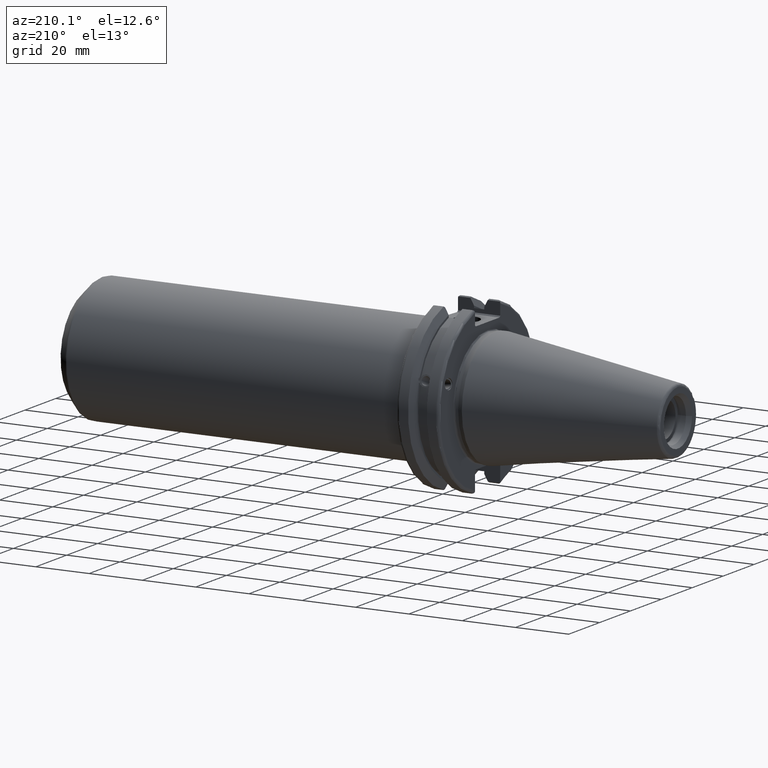
[diagram: clean part render]
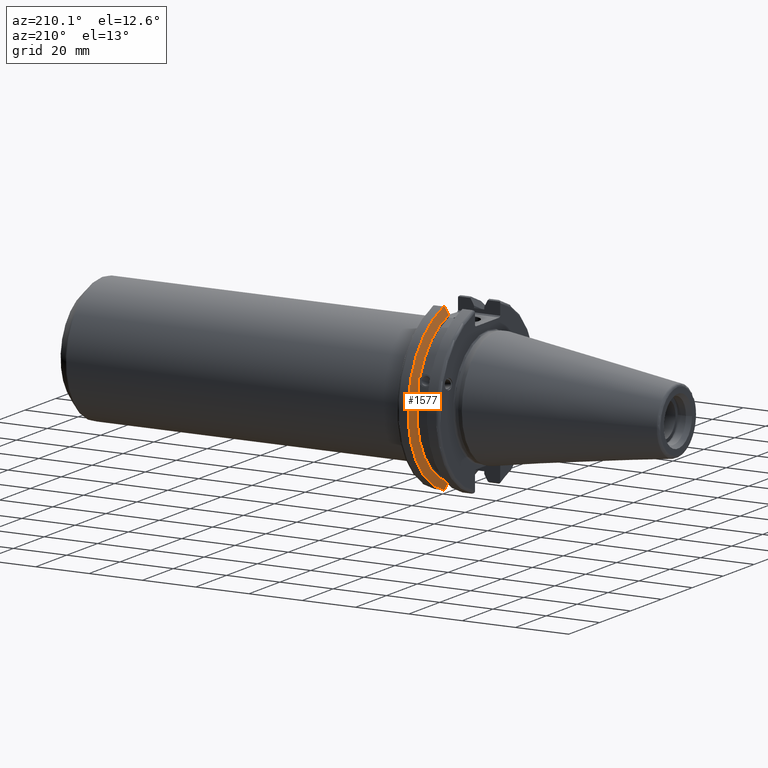
[diagram: same view with one face highlighted and labeled with its STEP entity id]
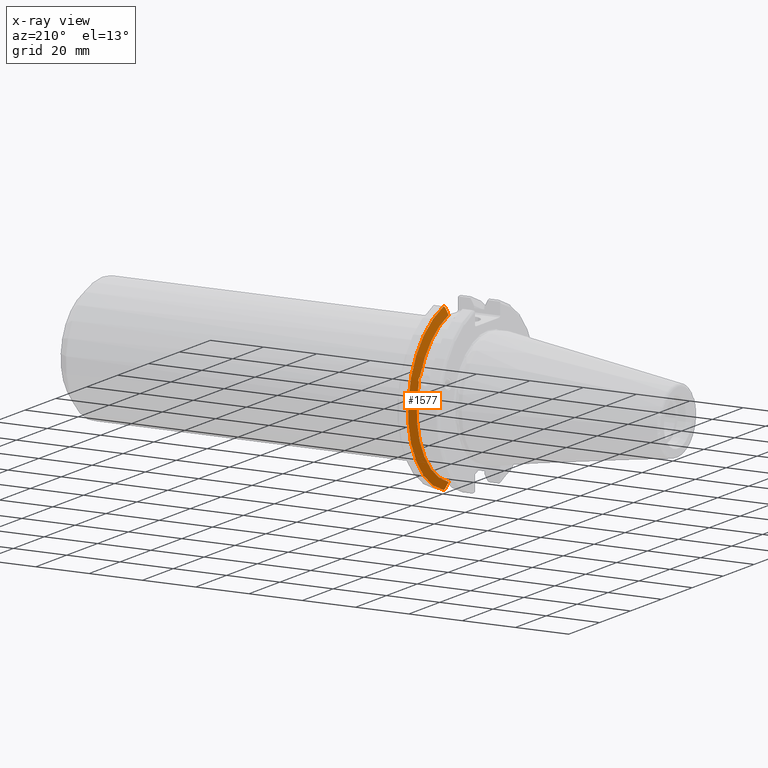
[diagram: x-ray of the same camera — body ghosted, the highlighted face saturated]
A machine part, auxiliary view. The second image highlights one B-rep face of the part: STEP entity #1577.
The next image is the same camera in x-ray: the body ghosted, the highlighted face saturated — about 0% of this face is hidden behind the body in this view.
In plain terms, the highlighted conical surface has half-angle 60 deg.
Its self-contained STEP definition (entity closure, byte-faithful):
#23=(
BOUNDED_CURVE()
B_SPLINE_CURVE(2,(#2879,#2880,#2881),.UNSPECIFIED.,.F.,.F.)
B_SPLINE_CURVE_WITH_KNOTS((3,3),(0.329353533631226,0.393258405001025),
 .UNSPECIFIED.)
CURVE()
GEOMETRIC_REPRESENTATION_ITEM()
RATIONAL_B_SPLINE_CURVE((1.00047644010577,1.00028444218285,1.))
REPRESENTATION_ITEM('')
);
#24=(
BOUNDED_CURVE()
B_SPLINE_CURVE(2,(#2892,#2893,#2894),.UNSPECIFIED.,.F.,.F.)
B_SPLINE_CURVE_WITH_KNOTS((3,3),(0.0550586467393769,0.331607789535852),
 .UNSPECIFIED.)
CURVE()
GEOMETRIC_REPRESENTATION_ITEM()
RATIONAL_B_SPLINE_CURVE((1.00031614444922,1.00095203903643,1.))
REPRESENTATION_ITEM('')
);
#29=(
BOUNDED_CURVE()
B_SPLINE_CURVE(2,(#3053,#3054,#3055),.UNSPECIFIED.,.F.,.F.)
B_SPLINE_CURVE_WITH_KNOTS((3,3),(0.,0.276549142795274),.UNSPECIFIED.)
CURVE()
GEOMETRIC_REPRESENTATION_ITEM()
RATIONAL_B_SPLINE_CURVE((1.,1.00095203903599,1.00031614444907))
REPRESENTATION_ITEM('')
);
#30=(
BOUNDED_CURVE()
B_SPLINE_CURVE(2,(#3070,#3071,#3072),.UNSPECIFIED.,.F.,.F.)
B_SPLINE_CURVE_WITH_KNOTS((3,3),(0.,0.0639048713675655),.UNSPECIFIED.)
CURVE()
GEOMETRIC_REPRESENTATION_ITEM()
RATIONAL_B_SPLINE_CURVE((1.,1.00028444218286,1.00047644010578))
REPRESENTATION_ITEM('')
);
#71=B_SPLINE_CURVE_WITH_KNOTS('',3,(#2691,#2692,#2693,#2694,#2695,#2696,
#2697,#2698),.UNSPECIFIED.,.F.,.F.,(4,2,2,4),(0.451995700189023,0.464547828547662,
0.504528771685167,0.544509714822672),.UNSPECIFIED.);
#75=B_SPLINE_CURVE_WITH_KNOTS('',3,(#2753,#2754,#2755,#2756,#2757,#2758,
#2759,#2760),.UNSPECIFIED.,.F.,.F.,(4,2,2,4),(0.544509714822672,0.584490657960177,
0.624471601097682,0.637023729456323),.UNSPECIFIED.);
#99=CONICAL_SURFACE('',#1779,30.3546886482472,1.0471975511966);
#429=FACE_OUTER_BOUND('',#529,.T.);
#529=EDGE_LOOP('',(#1442,#1443,#1444,#1445,#1446,#1447,#1448,#1449,#1450));
#586=CIRCLE('',#1712,28.9593772964944);
#607=CIRCLE('',#1765,31.75);
#614=CIRCLE('',#1780,28.9593772964944);
#701=VERTEX_POINT('',#2688);
#702=VERTEX_POINT('',#2690);
#709=VERTEX_POINT('',#2751);
#718=VERTEX_POINT('',#2792);
#740=VERTEX_POINT('',#2876);
#741=VERTEX_POINT('',#2878);
#766=VERTEX_POINT('',#3050);
#767=VERTEX_POINT('',#3052);
#770=VERTEX_POINT('',#3068);
#891=EDGE_CURVE('',#702,#701,#71,.T.);
#899=EDGE_CURVE('',#701,#709,#75,.T.);
#911=EDGE_CURVE('',#718,#702,#586,.T.);
#941=EDGE_CURVE('',#740,#741,#23,.T.);
#945=EDGE_CURVE('',#740,#718,#24,.T.);
#988=EDGE_CURVE('',#767,#766,#29,.T.);
#996=EDGE_CURVE('',#770,#766,#30,.T.);
#997=EDGE_CURVE('',#741,#770,#607,.T.);
#1007=EDGE_CURVE('',#709,#767,#614,.T.);
#1442=ORIENTED_EDGE('',*,*,#891,.T.);
#1443=ORIENTED_EDGE('',*,*,#899,.T.);
#1444=ORIENTED_EDGE('',*,*,#1007,.T.);
#1445=ORIENTED_EDGE('',*,*,#988,.T.);
#1446=ORIENTED_EDGE('',*,*,#996,.F.);
#1447=ORIENTED_EDGE('',*,*,#997,.F.);
#1448=ORIENTED_EDGE('',*,*,#941,.F.);
#1449=ORIENTED_EDGE('',*,*,#945,.T.);
#1450=ORIENTED_EDGE('',*,*,#911,.T.);
#1577=ADVANCED_FACE('',(#429),#99,.T.);
#1712=AXIS2_PLACEMENT_3D('',#2793,#2037,#2038);
#1765=AXIS2_PLACEMENT_3D('',#3074,#2183,#2184);
#1779=AXIS2_PLACEMENT_3D('',#3094,#2214,#2215);
#1780=AXIS2_PLACEMENT_3D('',#3095,#2216,#2217);
#2037=DIRECTION('center_axis',(1.,0.,0.));
#2038=DIRECTION('ref_axis',(0.,0.,-1.));
#2183=DIRECTION('center_axis',(1.,0.,0.));
#2184=DIRECTION('ref_axis',(0.,0.,-1.));
#2214=DIRECTION('center_axis',(1.,0.,0.));
#2215=DIRECTION('ref_axis',(0.,1.,0.));
#2216=DIRECTION('center_axis',(1.,0.,0.));
#2217=DIRECTION('ref_axis',(0.,0.,-1.));
#2688=CARTESIAN_POINT('',(13.2341,27.51401829017,10.0142836826778));
#2690=CARTESIAN_POINT('',(13.0491,27.4956274489925,9.09043478536244));
#2691=CARTESIAN_POINT('Ctrl Pts',(13.0491,27.4956274489925,9.09043478536245));
#2692=CARTESIAN_POINT('Ctrl Pts',(13.0632204071996,27.5087667900418,9.12860597076217));
#2693=CARTESIAN_POINT('Ctrl Pts',(13.0766929817857,27.5206055003512,9.16696618806877));
#2694=CARTESIAN_POINT('Ctrl Pts',(13.130081441159,27.5642934663232,9.32791534028656));
#2695=CARTESIAN_POINT('Ctrl Pts',(13.1682197084175,27.5867382255984,9.46717946402648));
#2696=CARTESIAN_POINT('Ctrl Pts',(13.2204106446058,27.5847569104122,9.74771639360672));
#2697=CARTESIAN_POINT('Ctrl Pts',(13.2341,27.559599249844,9.8890510252165));
#2698=CARTESIAN_POINT('Ctrl Pts',(13.2341,27.51401829017,10.0142836826778));
#2751=CARTESIAN_POINT('',(13.0491,26.9060914640648,10.7101715919071));
#2753=CARTESIAN_POINT('Ctrl Pts',(13.2341,27.51401829017,10.0142836826778));
#2754=CARTESIAN_POINT('Ctrl Pts',(13.2341,27.4684373304961,10.139516340139));
#2755=CARTESIAN_POINT('Ctrl Pts',(13.2204106446058,27.3968610665578,10.2639559818059));
#2756=CARTESIAN_POINT('Ctrl Pts',(13.1682197084175,27.2180531796526,10.4801333026531));
#2757=CARTESIAN_POINT('Ctrl Pts',(13.130081441159,27.1113422433189,10.5723885976054));
#2758=CARTESIAN_POINT('Ctrl Pts',(13.0766929817857,26.9744191989197,10.6676007180674));
#2759=CARTESIAN_POINT('Ctrl Pts',(13.0632204071996,26.9406927482839,10.6893765730703));
#2760=CARTESIAN_POINT('Ctrl Pts',(13.0491,26.9060914640648,10.7101715919071));
#2792=CARTESIAN_POINT('',(13.0491,8.19,-27.7771386827498));
#2793=CARTESIAN_POINT('Origin',(13.0491,0.,0.));
#2876=CARTESIAN_POINT('',(14.3815146964874,8.19,-30.1755016258903));
#2878=CARTESIAN_POINT('',(14.6602667690756,8.67204822802685,-30.5427254764662));
#2879=CARTESIAN_POINT('Ctrl Pts',(14.3815146964874,8.19,-30.1755016258903));
#2880=CARTESIAN_POINT('Ctrl Pts',(14.5192085187884,8.42917748263464,-30.3577067892692));
#2881=CARTESIAN_POINT('Ctrl Pts',(14.6602667690756,8.67204822802686,-30.5427254764662));
#2892=CARTESIAN_POINT('Ctrl Pts',(14.3815146964874,8.18999999999999,-30.1755016258903));
#2893=CARTESIAN_POINT('Ctrl Pts',(13.687736438474,8.19,-28.9303689539668));
#2894=CARTESIAN_POINT('Ctrl Pts',(13.0491,8.19,-27.7771386827498));
#3050=CARTESIAN_POINT('',(14.3815146964874,8.19,30.1755016258903));
#3052=CARTESIAN_POINT('',(13.0491,8.19,27.7771386827498));
#3053=CARTESIAN_POINT('Ctrl Pts',(13.0491,8.19,27.7771386827498));
#3054=CARTESIAN_POINT('Ctrl Pts',(13.687736438489,8.19,28.9303689539938));
#3055=CARTESIAN_POINT('Ctrl Pts',(14.3815146964874,8.19,30.1755016258903));
#3068=CARTESIAN_POINT('',(14.6602667690756,8.67204822802685,30.5427254764662));
#3070=CARTESIAN_POINT('Ctrl Pts',(14.6602667690756,8.67204822802687,30.5427254764662));
#3071=CARTESIAN_POINT('Ctrl Pts',(14.5192085187837,8.42917748262644,30.357706789263));
#3072=CARTESIAN_POINT('Ctrl Pts',(14.3815146964874,8.19,30.1755016258903));
#3074=CARTESIAN_POINT('Origin',(14.6602667690756,0.,0.));
#3094=CARTESIAN_POINT('Origin',(13.8546833845378,0.,0.));
#3095=CARTESIAN_POINT('Origin',(13.0491,0.,0.));